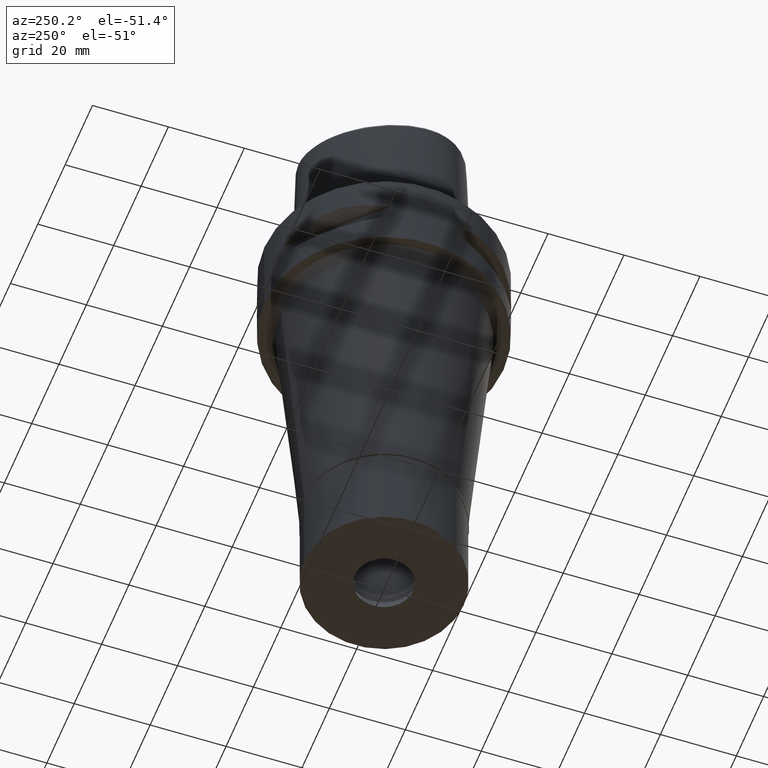
[diagram: clean part render]
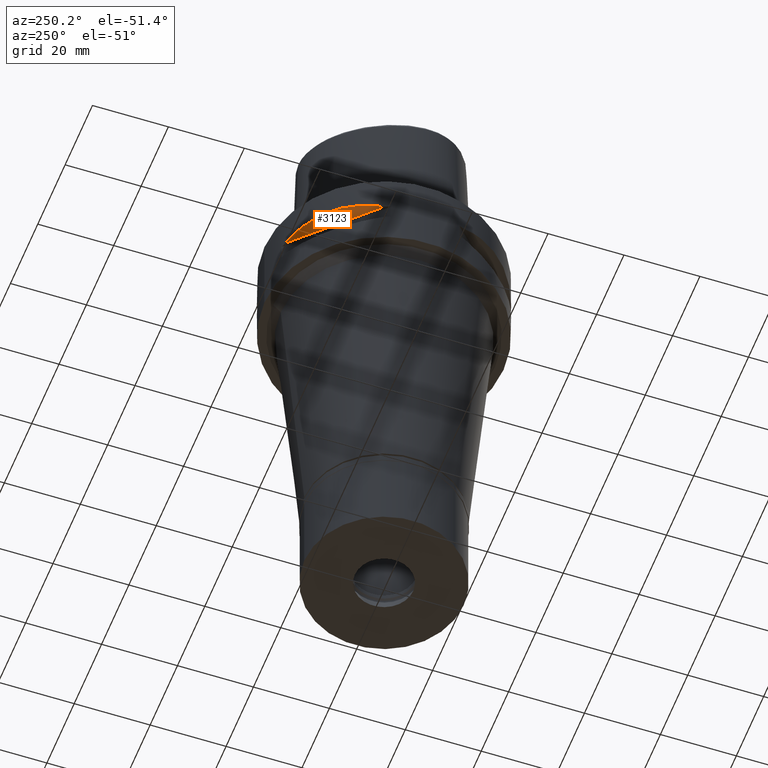
[diagram: same view with one face highlighted and labeled with its STEP entity id]
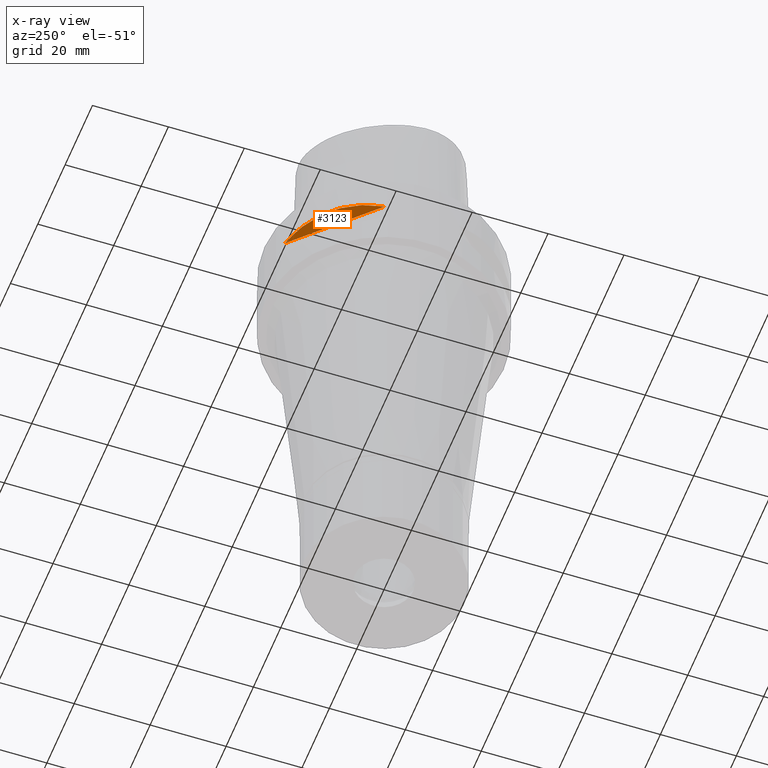
[diagram: x-ray of the same camera — body ghosted, the highlighted face saturated]
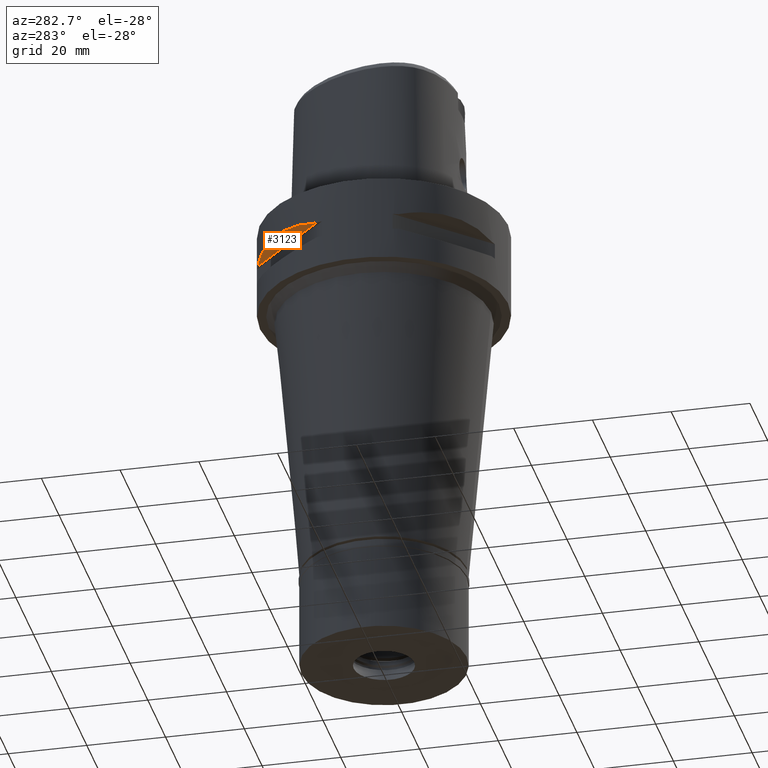
[diagram: same view with one face highlighted and labeled with its STEP entity id]
A machine part, auxiliary view. The second image highlights one B-rep face of the part: STEP entity #3123.
The next image is the same camera in x-ray: the body ghosted, the highlighted face saturated — about 0% of this face is hidden behind the body in this view.
A second angle (auxiliary view) of the same face is appended — the face is thin or edge-on in the first view.
In plain terms, the highlighted planar face has unit normal (0.3536, -0.3536, 0.866).
Its self-contained STEP definition (entity closure, byte-faithful):
#242 = CARTESIAN_POINT ( 'NONE',  ( -12.73197616787516040, 28.91382665369138749, -9.345326382460914516 ) ) ;
#441 = CARTESIAN_POINT ( 'NONE',  ( -10.44775724750000023, 29.71690375017999841, -9.949999999998999201 ) ) ;
#584 = CARTESIAN_POINT ( 'NONE',  ( -26.84474411198721455, 16.48208282229338195, -8.659051162216787390 ) ) ;
#891 = DIRECTION ( 'NONE',  ( -0.7071067811865475727, -0.7071067811865475727, 0.0000000000000000000 ) ) ;
#905 = LINE ( 'NONE', #441, #961 ) ;
#961 = VECTOR ( 'NONE', #2877, 1000.000000000000114 ) ;
#1063 = CARTESIAN_POINT ( 'NONE',  ( -21.46242677079834138, 23.08532645887192203, -8.160610089341528095 ) ) ;
#1281 = CARTESIAN_POINT ( 'NONE',  ( -29.71690375017999841, 10.44775724750000023, -9.949999999998999201 ) ) ;
#1460 = CARTESIAN_POINT ( 'NONE',  ( -10.44775724750000023, 29.71690375017999841, -9.949999999998999201 ) ) ;
#1496 = EDGE_CURVE ( 'NONE', #3551, #2553, #905, .T. ) ;
#1602 = AXIS2_PLACEMENT_3D ( 'NONE', #2102, #2079, #891 ) ;
#2079 = DIRECTION ( 'NONE',  ( 0.3535533905933054277, -0.3535533905933054277, 0.8660254037844128394 ) ) ;
#2102 = CARTESIAN_POINT ( 'NONE',  ( -37.12310601229000184, 8.838834764832000701, -7.583270440698999693 ) ) ;
#2148 = CARTESIAN_POINT ( 'NONE',  ( -10.44775724750000023, 29.71690375017999841, -9.949999999998999201 ) ) ;
#2166 = CARTESIAN_POINT ( 'NONE',  ( -26.70521063584543597, 16.70616724746083648, -8.624533381819961875 ) ) ;
#2189 = CARTESIAN_POINT ( 'NONE',  ( -26.60451452154827479, 16.86571563436777410, -8.600507042137108371 ) ) ;
#2259 = CARTESIAN_POINT ( 'NONE',  ( -17.76952662673343397, 26.01217882834028217, -8.473347783734256566 ) ) ;
#2405 = CARTESIAN_POINT ( 'NONE',  ( -29.31542262584386904, 11.58970337495283864, -9.647706428326454642 ) ) ;
#2484 = EDGE_LOOP ( 'NONE', ( #3994, #4099 ) ) ;
#2553 = VERTEX_POINT ( 'NONE', #1281 ) ;
#2678 = CARTESIAN_POINT ( 'NONE',  ( -18.59229662067374633, 25.43927894890470753, -8.371338736649670764 ) ) ;
#2730 = EDGE_CURVE ( 'NONE', #2553, #3551, #3659, .T. ) ;
#2877 = DIRECTION ( 'NONE',  ( -0.7071067811865474617, -0.7071067811865474617, 0.0000000000000000000 ) ) ;
#3036 = CARTESIAN_POINT ( 'NONE',  ( -16.96123479565030934, 26.54368690921734952, -8.586344276584055635 ) ) ;
#3123 = ADVANCED_FACE ( 'NONE', ( #4007 ), #4426, .F. ) ;
#3369 = CARTESIAN_POINT ( 'NONE',  ( -16.98999780422272110, 26.52527364208619431, -8.582119012333926378 ) ) ;
#3411 = CARTESIAN_POINT ( 'NONE',  ( -17.05047092244551621, 26.48642424310436638, -8.573291165920331025 ) ) ;
#3551 = VERTEX_POINT ( 'NONE', #2148 ) ;
#3659 = B_SPLINE_CURVE_WITH_KNOTS ( 'NONE', 3,
 ( #4483, #2405, #4097, #4119, #4048, #584, #2166, #4927, #2189, #3784, #3853, #4604, #1063, #5044, #2678, #2259, #4554, #4209, #3411, #3369, #3036, #4995, #242, #1460 ),
 .UNSPECIFIED., .F., .F.,
 ( 4, 1, 1, 1, 1, 1, 2, 2, 2, 1, 1, 1, 1, 1, 2, 2, 4 ),
 ( 0.0000000000000000000, 0.1249999999999937828, 0.1874999999999907296, 0.2187499999999890365, 0.2343749999999882316, 0.2421874999999878431, 0.2460937499999878708, 0.2499999999999878986, 0.4999999999999847899, 0.6249999999999832356, 0.6874999999999825695, 0.7187499999999821254, 0.7343749999999817923, 0.7421874999999815703, 0.7460937499999819034, 0.7499999999999821254, 1.000000000000000000 ),
 .UNSPECIFIED. ) ;
#3784 = CARTESIAN_POINT ( 'NONE',  ( -26.58330558444515290, 16.89910283486678821, -8.595535286924912199 ) ) ;
#3853 = CARTESIAN_POINT ( 'NONE',  ( -25.32725744468778117, 18.86897208071351528, -8.304119040666874341 ) ) ;
#3994 = ORIENTED_EDGE ( 'NONE', *, *, #1496, .T. ) ;
#4007 = FACE_OUTER_BOUND ( 'NONE', #2484, .T. ) ;
#4048 = CARTESIAN_POINT ( 'NONE',  ( -27.11872488589111541, 16.03138450079000776, -8.731195798919257456 ) ) ;
#4097 = CARTESIAN_POINT ( 'NONE',  ( -28.62019653468352942, 13.25636937905195722, -9.251117744580772850 ) ) ;
#4099 = ORIENTED_EDGE ( 'NONE', *, *, #2730, .T. ) ;
#4119 = CARTESIAN_POINT ( 'NONE',  ( -27.64634172018019953, 15.11986997310926206, -8.887921375959432879 ) ) ;
#4209 = CARTESIAN_POINT ( 'NONE',  ( -17.14106442935189989, 26.42800887047403791, -8.560154497611819124 ) ) ;
#4426 = PLANE ( 'NONE',  #1602 ) ;
#4483 = CARTESIAN_POINT ( 'NONE',  ( -29.71690375017999841, 10.44775724750000023, -9.949999999998999201 ) ) ;
#4554 = CARTESIAN_POINT ( 'NONE',  ( -17.35163608580538863, 26.29071741523354078, -8.530237980741757653 ) ) ;
#4604 = CARTESIAN_POINT ( 'NONE',  ( -23.89673728052539659, 20.65093790437828858, -8.160641950984063087 ) ) ;
#4927 = CARTESIAN_POINT ( 'NONE',  ( -26.64486562695828553, 16.80193241490740874, -8.610073162640123456 ) ) ;
#4995 = CARTESIAN_POINT ( 'NONE',  ( -14.89252659056605488, 27.86285265926838051, -8.892343702481497303 ) ) ;
#5044 = CARTESIAN_POINT ( 'NONE',  ( -20.18579225689131817, 24.23018836743738191, -8.214406030202187736 ) ) ;